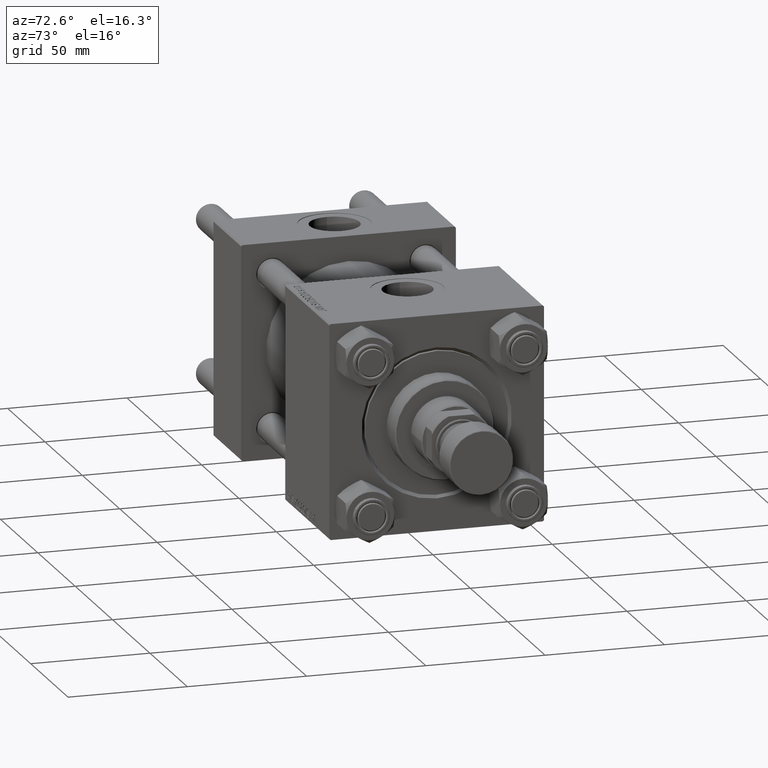
[diagram: clean part render]
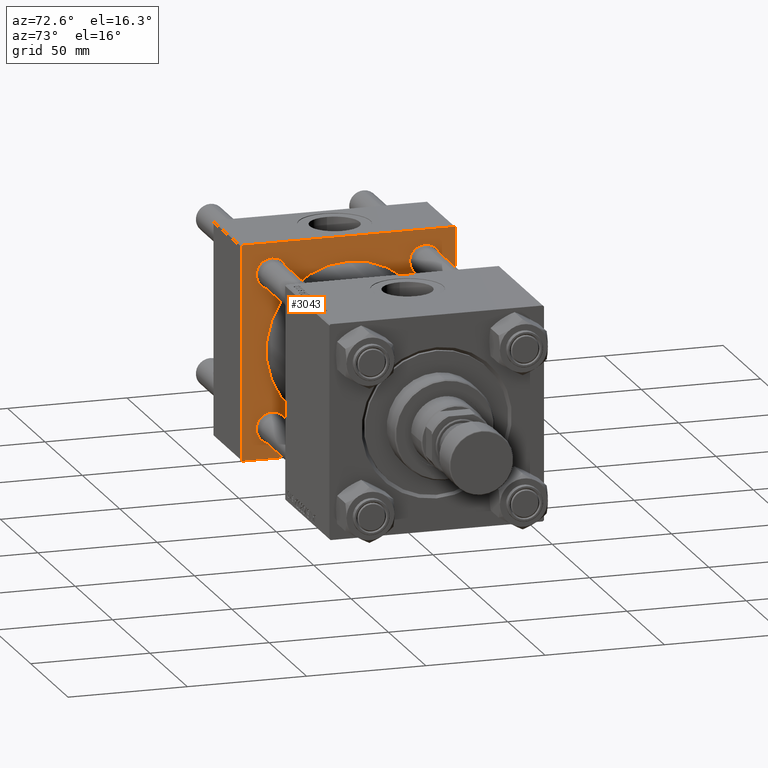
[diagram: same view with one face highlighted and labeled with its STEP entity id]
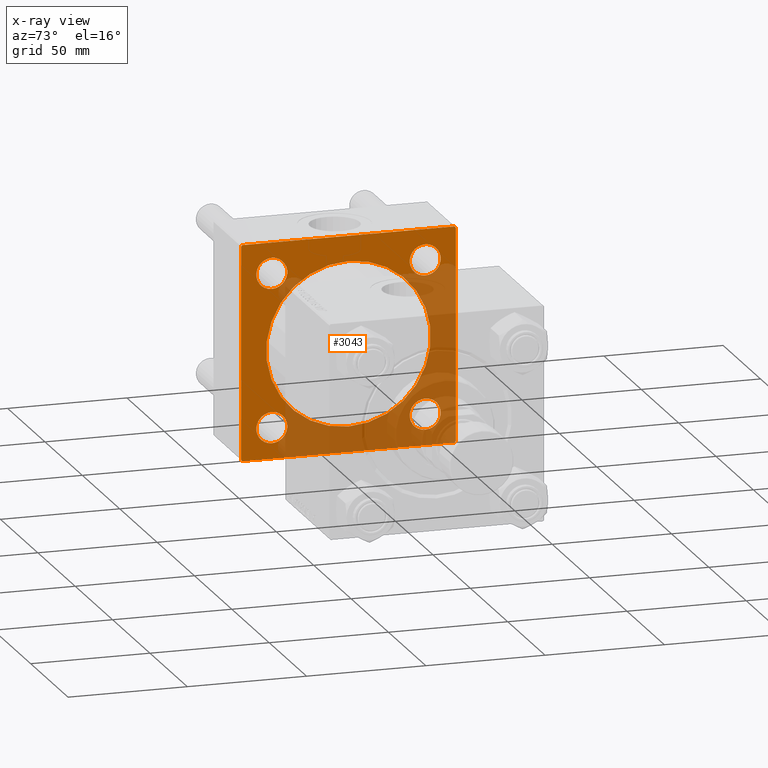
[diagram: x-ray of the same camera — body ghosted, the highlighted face saturated]
A machine part, auxiliary view. The second image highlights one B-rep face of the part: STEP entity #3043.
The next image is the same camera in x-ray: the body ghosted, the highlighted face saturated — about 47% of this face is hidden behind the body in this view.
In plain terms, the highlighted planar face has unit normal (-1, 0, 0).
Its self-contained STEP definition (entity closure, byte-faithful):
#41 = CARTESIAN_POINT ( 'NONE',  ( 37.00000000000000000, 44.99999999999998579, 45.00000000000001421 ) ) ;
#1072 = EDGE_CURVE ( 'NONE', #33173, #38232, #40524, .T. ) ;
#1100 = LINE ( 'NONE', #33661, #10972 ) ;
#1744 = ORIENTED_EDGE ( 'NONE', *, *, #12502, .T. ) ;
#1941 = CARTESIAN_POINT ( 'NONE',  ( 37.00000000000000000, -32.14999999999997726, -25.64999999999997726 ) ) ;
#2072 = CARTESIAN_POINT ( 'NONE',  ( 37.00000000000000000, -45.00000000000000000, -44.49999999999995737 ) ) ;
#2088 = DIRECTION ( 'NONE',  ( 0.000000000000000000, 0.000000000000000000, 1.000000000000000000 ) ) ;
#2117 = DIRECTION ( 'NONE',  ( -1.000000000000000000, 0.000000000000000000, -0.000000000000000000 ) ) ;
#2771 = ORIENTED_EDGE ( 'NONE', *, *, #41147, .F. ) ;
#3043 = ADVANCED_FACE ( 'NONE', ( #26978, #30952, #51290, #42576, #19019, #6613 ), #47053, .F. ) ;
#3147 = EDGE_CURVE ( 'NONE', #22149, #22549, #18754, .T. ) ;
#3196 = DIRECTION ( 'NONE',  ( 0.000000000000000000, 0.000000000000000000, 1.000000000000000000 ) ) ;
#3613 = VERTEX_POINT ( 'NONE', #23712 ) ;
#4534 = VERTEX_POINT ( 'NONE', #17346 ) ;
#5898 = AXIS2_PLACEMENT_3D ( 'NONE', #18969, #35382, #51506 ) ;
#6284 = CARTESIAN_POINT ( 'NONE',  ( 37.00000000000000000, 44.99999999999998579, -44.49999999999998579 ) ) ;
#6453 = AXIS2_PLACEMENT_3D ( 'NONE', #23536, #32006, #48124 ) ;
#6613 = FACE_OUTER_BOUND ( 'NONE', #47965, .T. ) ;
#8229 = CARTESIAN_POINT ( 'NONE',  ( 37.00000000000000000, -32.14999999999997726, 32.15000000000001279 ) ) ;
#8726 = CARTESIAN_POINT ( 'NONE',  ( 37.00000000000000000, 44.99999999999998579, -44.99999999999998579 ) ) ;
#8827 = CIRCLE ( 'NONE', #30813, 6.500000000000033751 ) ;
#9034 = CARTESIAN_POINT ( 'NONE',  ( 37.00000000000000000, -44.49999999999998579, -45.00000000000000000 ) ) ;
#9247 = DIRECTION ( 'NONE',  ( 0.000000000000000000, -1.000000000000000000, -1.541976423090495633E-16 ) ) ;
#9727 = ORIENTED_EDGE ( 'NONE', *, *, #28374, .T. ) ;
#9800 = CARTESIAN_POINT ( 'NONE',  ( 37.00000000000000000, 0.000000000000000000, 0.000000000000000000 ) ) ;
#9942 = DIRECTION ( 'NONE',  ( -1.000000000000000000, 0.000000000000000000, -0.000000000000000000 ) ) ;
#9975 = VERTEX_POINT ( 'NONE', #32166 ) ;
#10037 = VECTOR ( 'NONE', #32862, 1000.000000000000114 ) ;
#10265 = LINE ( 'NONE', #6284, #29874 ) ;
#10972 = VECTOR ( 'NONE', #50041, 1000.000000000000000 ) ;
#12420 = CARTESIAN_POINT ( 'NONE',  ( 37.00000000000000000, -32.14999999999997726, -38.65000000000004832 ) ) ;
#12456 = DIRECTION ( 'NONE',  ( 0.000000000000000000, 0.000000000000000000, 1.000000000000000000 ) ) ;
#12502 = EDGE_CURVE ( 'NONE', #23580, #47902, #8827, .T. ) ;
#13127 = CIRCLE ( 'NONE', #18228, 6.500000000000033751 ) ;
#13308 = CIRCLE ( 'NONE', #25971, 34.49999999999999289 ) ;
#13397 = EDGE_LOOP ( 'NONE', ( #17903, #25236 ) ) ;
#14781 = EDGE_CURVE ( 'NONE', #22549, #22149, #13127, .T. ) ;
#15302 = CARTESIAN_POINT ( 'NONE',  ( 37.00000000000000000, -45.00000000000000711, 44.49999999999997158 ) ) ;
#15457 = DIRECTION ( 'NONE',  ( -1.000000000000000000, 0.000000000000000000, -0.000000000000000000 ) ) ;
#15627 = AXIS2_PLACEMENT_3D ( 'NONE', #8229, #24610, #12456 ) ;
#15641 = DIRECTION ( 'NONE',  ( 1.000000000000000000, -0.000000000000000000, 0.000000000000000000 ) ) ;
#15883 = VECTOR ( 'NONE', #37215, 1000.000000000000114 ) ;
#16043 = VERTEX_POINT ( 'NONE', #49949 ) ;
#16185 = DIRECTION ( 'NONE',  ( 0.000000000000000000, 0.000000000000000000, -1.000000000000000000 ) ) ;
#16615 = VERTEX_POINT ( 'NONE', #31245 ) ;
#17136 = ORIENTED_EDGE ( 'NONE', *, *, #35299, .T. ) ;
#17346 = CARTESIAN_POINT ( 'NONE',  ( 37.00000000000000000, -44.49999999999995737, 45.00000000000000000 ) ) ;
#17543 = DIRECTION ( 'NONE',  ( 0.000000000000000000, 0.000000000000000000, 1.000000000000000000 ) ) ;
#17745 = EDGE_CURVE ( 'NONE', #25661, #25494, #25085, .T. ) ;
#17903 = ORIENTED_EDGE ( 'NONE', *, *, #3147, .T. ) ;
#18228 = AXIS2_PLACEMENT_3D ( 'NONE', #28828, #48390, #48921 ) ;
#18393 = DIRECTION ( 'NONE',  ( 0.000000000000000000, 0.000000000000000000, 1.000000000000000000 ) ) ;
#18717 = AXIS2_PLACEMENT_3D ( 'NONE', #41608, #37638, #17543 ) ;
#18754 = CIRCLE ( 'NONE', #22984, 6.500000000000033751 ) ;
#18969 = CARTESIAN_POINT ( 'NONE',  ( 37.00000000000000000, 0.000000000000000000, 0.000000000000000000 ) ) ;
#19019 = FACE_BOUND ( 'NONE', #34225, .T. ) ;
#19229 = AXIS2_PLACEMENT_3D ( 'NONE', #33490, #9942, #18393 ) ;
#19280 = DIRECTION ( 'NONE',  ( 0.000000000000000000, 0.000000000000000000, 1.000000000000000000 ) ) ;
#19881 = LINE ( 'NONE', #41, #37658 ) ;
#19891 = EDGE_CURVE ( 'NONE', #16615, #4534, #32702, .T. ) ;
#20337 = VERTEX_POINT ( 'NONE', #51359 ) ;
#20764 = ORIENTED_EDGE ( 'NONE', *, *, #29050, .T. ) ;
#22081 = CIRCLE ( 'NONE', #18717, 6.500000000000033751 ) ;
#22149 = VERTEX_POINT ( 'NONE', #12420 ) ;
#22487 = CIRCLE ( 'NONE', #6453, 6.500000000000033751 ) ;
#22549 = VERTEX_POINT ( 'NONE', #1941 ) ;
#22597 = CIRCLE ( 'NONE', #19229, 6.500000000000033751 ) ;
#22984 = AXIS2_PLACEMENT_3D ( 'NONE', #27228, #36464, #19280 ) ;
#23536 = CARTESIAN_POINT ( 'NONE',  ( 37.00000000000000000, 32.14999999999999147, 32.15000000000000568 ) ) ;
#23580 = VERTEX_POINT ( 'NONE', #39541 ) ;
#23599 = EDGE_LOOP ( 'NONE', ( #31808, #49914 ) ) ;
#23712 = CARTESIAN_POINT ( 'NONE',  ( 37.00000000000000000, 32.14999999999999147, 25.64999999999997016 ) ) ;
#24121 = LINE ( 'NONE', #9034, #10037 ) ;
#24610 = DIRECTION ( 'NONE',  ( -1.000000000000000000, 0.000000000000000000, -0.000000000000000000 ) ) ;
#25085 = CIRCLE ( 'NONE', #28461, 6.500000000000033751 ) ;
#25236 = ORIENTED_EDGE ( 'NONE', *, *, #14781, .T. ) ;
#25494 = VERTEX_POINT ( 'NONE', #48514 ) ;
#25661 = VERTEX_POINT ( 'NONE', #38954 ) ;
#25822 = EDGE_CURVE ( 'NONE', #51689, #9975, #24121, .T. ) ;
#25971 = AXIS2_PLACEMENT_3D ( 'NONE', #51863, #15641, #3196 ) ;
#26978 = FACE_BOUND ( 'NONE', #13397, .T. ) ;
#26996 = ORIENTED_EDGE ( 'NONE', *, *, #39005, .T. ) ;
#27228 = CARTESIAN_POINT ( 'NONE',  ( 37.00000000000000000, -32.14999999999997726, -32.15000000000001279 ) ) ;
#27309 = EDGE_CURVE ( 'NONE', #37317, #9975, #41760, .T. ) ;
#28374 = EDGE_CURVE ( 'NONE', #4534, #20337, #52312, .T. ) ;
#28461 = AXIS2_PLACEMENT_3D ( 'NONE', #45998, #34375, #2088 ) ;
#28828 = CARTESIAN_POINT ( 'NONE',  ( 37.00000000000000000, -32.14999999999997726, -32.15000000000001279 ) ) ;
#29050 = EDGE_CURVE ( 'NONE', #20337, #51689, #1100, .T. ) ;
#29248 = DIRECTION ( 'NONE',  ( 0.000000000000000000, -1.000000000000000000, -1.541976423090495387E-16 ) ) ;
#29290 = CARTESIAN_POINT ( 'NONE',  ( 37.00000000000000000, 44.49999999999998579, 45.00000000000001421 ) ) ;
#29874 = VECTOR ( 'NONE', #50970, 1000.000000000000114 ) ;
#30058 = EDGE_CURVE ( 'NONE', #3613, #36643, #22081, .T. ) ;
#30496 = CARTESIAN_POINT ( 'NONE',  ( 37.00000000000000000, -32.14999999999997726, 25.64999999999997726 ) ) ;
#30813 = AXIS2_PLACEMENT_3D ( 'NONE', #39261, #15457, #43745 ) ;
#30952 = FACE_BOUND ( 'NONE', #48976, .T. ) ;
#31245 = CARTESIAN_POINT ( 'NONE',  ( 37.00000000000000000, 44.49999999999998579, 45.00000000000001421 ) ) ;
#31808 = ORIENTED_EDGE ( 'NONE', *, *, #30058, .T. ) ;
#32006 = DIRECTION ( 'NONE',  ( -1.000000000000000000, 0.000000000000000000, -0.000000000000000000 ) ) ;
#32070 = ORIENTED_EDGE ( 'NONE', *, *, #46277, .T. ) ;
#32166 = CARTESIAN_POINT ( 'NONE',  ( 37.00000000000000000, -44.49999999999995737, -45.00000000000000000 ) ) ;
#32232 = DIRECTION ( 'NONE',  ( -0.000000000000000000, -0.7071067811865425767, -0.7071067811865524577 ) ) ;
#32702 = LINE ( 'NONE', #48826, #35285 ) ;
#32862 = DIRECTION ( 'NONE',  ( 0.000000000000000000, 0.7071067811865474617, -0.7071067811865474617 ) ) ;
#33173 = VERTEX_POINT ( 'NONE', #40844 ) ;
#33490 = CARTESIAN_POINT ( 'NONE',  ( 37.00000000000000000, 32.14999999999999147, -32.15000000000000568 ) ) ;
#33661 = CARTESIAN_POINT ( 'NONE',  ( 37.00000000000000000, -45.00000000000000711, 45.00000000000000000 ) ) ;
#33735 = ORIENTED_EDGE ( 'NONE', *, *, #17745, .T. ) ;
#33990 = AXIS2_PLACEMENT_3D ( 'NONE', #9800, #2117, #38344 ) ;
#34225 = EDGE_LOOP ( 'NONE', ( #41960, #38448 ) ) ;
#34270 = EDGE_LOOP ( 'NONE', ( #26996, #1744 ) ) ;
#34375 = DIRECTION ( 'NONE',  ( -1.000000000000000000, 0.000000000000000000, -0.000000000000000000 ) ) ;
#35285 = VECTOR ( 'NONE', #29248, 1000.000000000000000 ) ;
#35299 = EDGE_CURVE ( 'NONE', #37317, #16043, #10265, .T. ) ;
#35382 = DIRECTION ( 'NONE',  ( 1.000000000000000000, -0.000000000000000000, 0.000000000000000000 ) ) ;
#35436 = VECTOR ( 'NONE', #9247, 1000.000000000000000 ) ;
#36464 = DIRECTION ( 'NONE',  ( -1.000000000000000000, 0.000000000000000000, -0.000000000000000000 ) ) ;
#36643 = VERTEX_POINT ( 'NONE', #47202 ) ;
#37215 = DIRECTION ( 'NONE',  ( 0.000000000000000000, -0.7071067811865474617, 0.7071067811865474617 ) ) ;
#37317 = VERTEX_POINT ( 'NONE', #37387 ) ;
#37387 = CARTESIAN_POINT ( 'NONE',  ( 37.00000000000000000, 44.49999999999998579, -44.99999999999998579 ) ) ;
#37404 = CARTESIAN_POINT ( 'NONE',  ( 37.00000000000000000, 0.000000000000000000, 34.49999999999999289 ) ) ;
#37638 = DIRECTION ( 'NONE',  ( -1.000000000000000000, 0.000000000000000000, -0.000000000000000000 ) ) ;
#37658 = VECTOR ( 'NONE', #16185, 1000.000000000000000 ) ;
#38232 = VERTEX_POINT ( 'NONE', #37404 ) ;
#38344 = DIRECTION ( 'NONE',  ( -0.000000000000000000, 0.000000000000000000, 1.000000000000000000 ) ) ;
#38422 = CIRCLE ( 'NONE', #15627, 6.500000000000033751 ) ;
#38448 = ORIENTED_EDGE ( 'NONE', *, *, #1072, .F. ) ;
#38954 = CARTESIAN_POINT ( 'NONE',  ( 37.00000000000000000, 32.14999999999999147, -38.65000000000004121 ) ) ;
#39005 = EDGE_CURVE ( 'NONE', #47902, #23580, #38422, .T. ) ;
#39261 = CARTESIAN_POINT ( 'NONE',  ( 37.00000000000000000, -32.14999999999997726, 32.15000000000001279 ) ) ;
#39541 = CARTESIAN_POINT ( 'NONE',  ( 37.00000000000000000, -32.14999999999997726, 38.65000000000004832 ) ) ;
#40021 = VERTEX_POINT ( 'NONE', #48890 ) ;
#40375 = ORIENTED_EDGE ( 'NONE', *, *, #27309, .F. ) ;
#40524 = CIRCLE ( 'NONE', #5898, 34.49999999999999289 ) ;
#40844 = CARTESIAN_POINT ( 'NONE',  ( 37.00000000000000000, 4.225031457058367344E-15, -34.49999999999999289 ) ) ;
#41147 = EDGE_CURVE ( 'NONE', #40021, #16043, #19881, .T. ) ;
#41608 = CARTESIAN_POINT ( 'NONE',  ( 37.00000000000000000, 32.14999999999999147, 32.15000000000000568 ) ) ;
#41760 = LINE ( 'NONE', #8726, #35436 ) ;
#41960 = ORIENTED_EDGE ( 'NONE', *, *, #48015, .F. ) ;
#42340 = EDGE_CURVE ( 'NONE', #36643, #3613, #22487, .T. ) ;
#42576 = FACE_BOUND ( 'NONE', #23599, .T. ) ;
#42709 = ORIENTED_EDGE ( 'NONE', *, *, #19891, .T. ) ;
#43745 = DIRECTION ( 'NONE',  ( 0.000000000000000000, 0.000000000000000000, 1.000000000000000000 ) ) ;
#44578 = ORIENTED_EDGE ( 'NONE', *, *, #45747, .T. ) ;
#45664 = LINE ( 'NONE', #29290, #15883 ) ;
#45747 = EDGE_CURVE ( 'NONE', #25494, #25661, #22597, .T. ) ;
#45998 = CARTESIAN_POINT ( 'NONE',  ( 37.00000000000000000, 32.14999999999999147, -32.15000000000000568 ) ) ;
#46277 = EDGE_CURVE ( 'NONE', #40021, #16615, #45664, .T. ) ;
#47053 = PLANE ( 'NONE',  #33990 ) ;
#47202 = CARTESIAN_POINT ( 'NONE',  ( 37.00000000000000000, 32.14999999999999147, 38.65000000000004121 ) ) ;
#47902 = VERTEX_POINT ( 'NONE', #30496 ) ;
#47965 = EDGE_LOOP ( 'NONE', ( #40375, #17136, #2771, #32070, #42709, #9727, #20764, #50524 ) ) ;
#48015 = EDGE_CURVE ( 'NONE', #38232, #33173, #13308, .T. ) ;
#48124 = DIRECTION ( 'NONE',  ( 0.000000000000000000, 0.000000000000000000, 1.000000000000000000 ) ) ;
#48390 = DIRECTION ( 'NONE',  ( -1.000000000000000000, 0.000000000000000000, -0.000000000000000000 ) ) ;
#48514 = CARTESIAN_POINT ( 'NONE',  ( 37.00000000000000000, 32.14999999999999147, -25.64999999999997016 ) ) ;
#48826 = CARTESIAN_POINT ( 'NONE',  ( 37.00000000000000000, 44.99999999999998579, 45.00000000000001421 ) ) ;
#48890 = CARTESIAN_POINT ( 'NONE',  ( 37.00000000000000000, 44.99999999999998579, 44.50000000000001421 ) ) ;
#48921 = DIRECTION ( 'NONE',  ( 0.000000000000000000, 0.000000000000000000, 1.000000000000000000 ) ) ;
#48976 = EDGE_LOOP ( 'NONE', ( #33735, #44578 ) ) ;
#49914 = ORIENTED_EDGE ( 'NONE', *, *, #42340, .T. ) ;
#49949 = CARTESIAN_POINT ( 'NONE',  ( 37.00000000000000000, 44.99999999999998579, -44.49999999999995737 ) ) ;
#50041 = DIRECTION ( 'NONE',  ( 0.000000000000000000, 7.709882115452476934E-17, -1.000000000000000000 ) ) ;
#50524 = ORIENTED_EDGE ( 'NONE', *, *, #25822, .T. ) ;
#50970 = DIRECTION ( 'NONE',  ( -0.000000000000000000, 0.7071067811865474617, 0.7071067811865474617 ) ) ;
#51290 = FACE_BOUND ( 'NONE', #34270, .T. ) ;
#51359 = CARTESIAN_POINT ( 'NONE',  ( 37.00000000000000000, -45.00000000000000711, 44.49999999999997158 ) ) ;
#51506 = DIRECTION ( 'NONE',  ( 0.000000000000000000, 0.000000000000000000, 1.000000000000000000 ) ) ;
#51689 = VERTEX_POINT ( 'NONE', #2072 ) ;
#51863 = CARTESIAN_POINT ( 'NONE',  ( 37.00000000000000000, 0.000000000000000000, 0.000000000000000000 ) ) ;
#52312 = LINE ( 'NONE', #15302, #52342 ) ;
#52342 = VECTOR ( 'NONE', #32232, 1000.000000000000114 ) ;